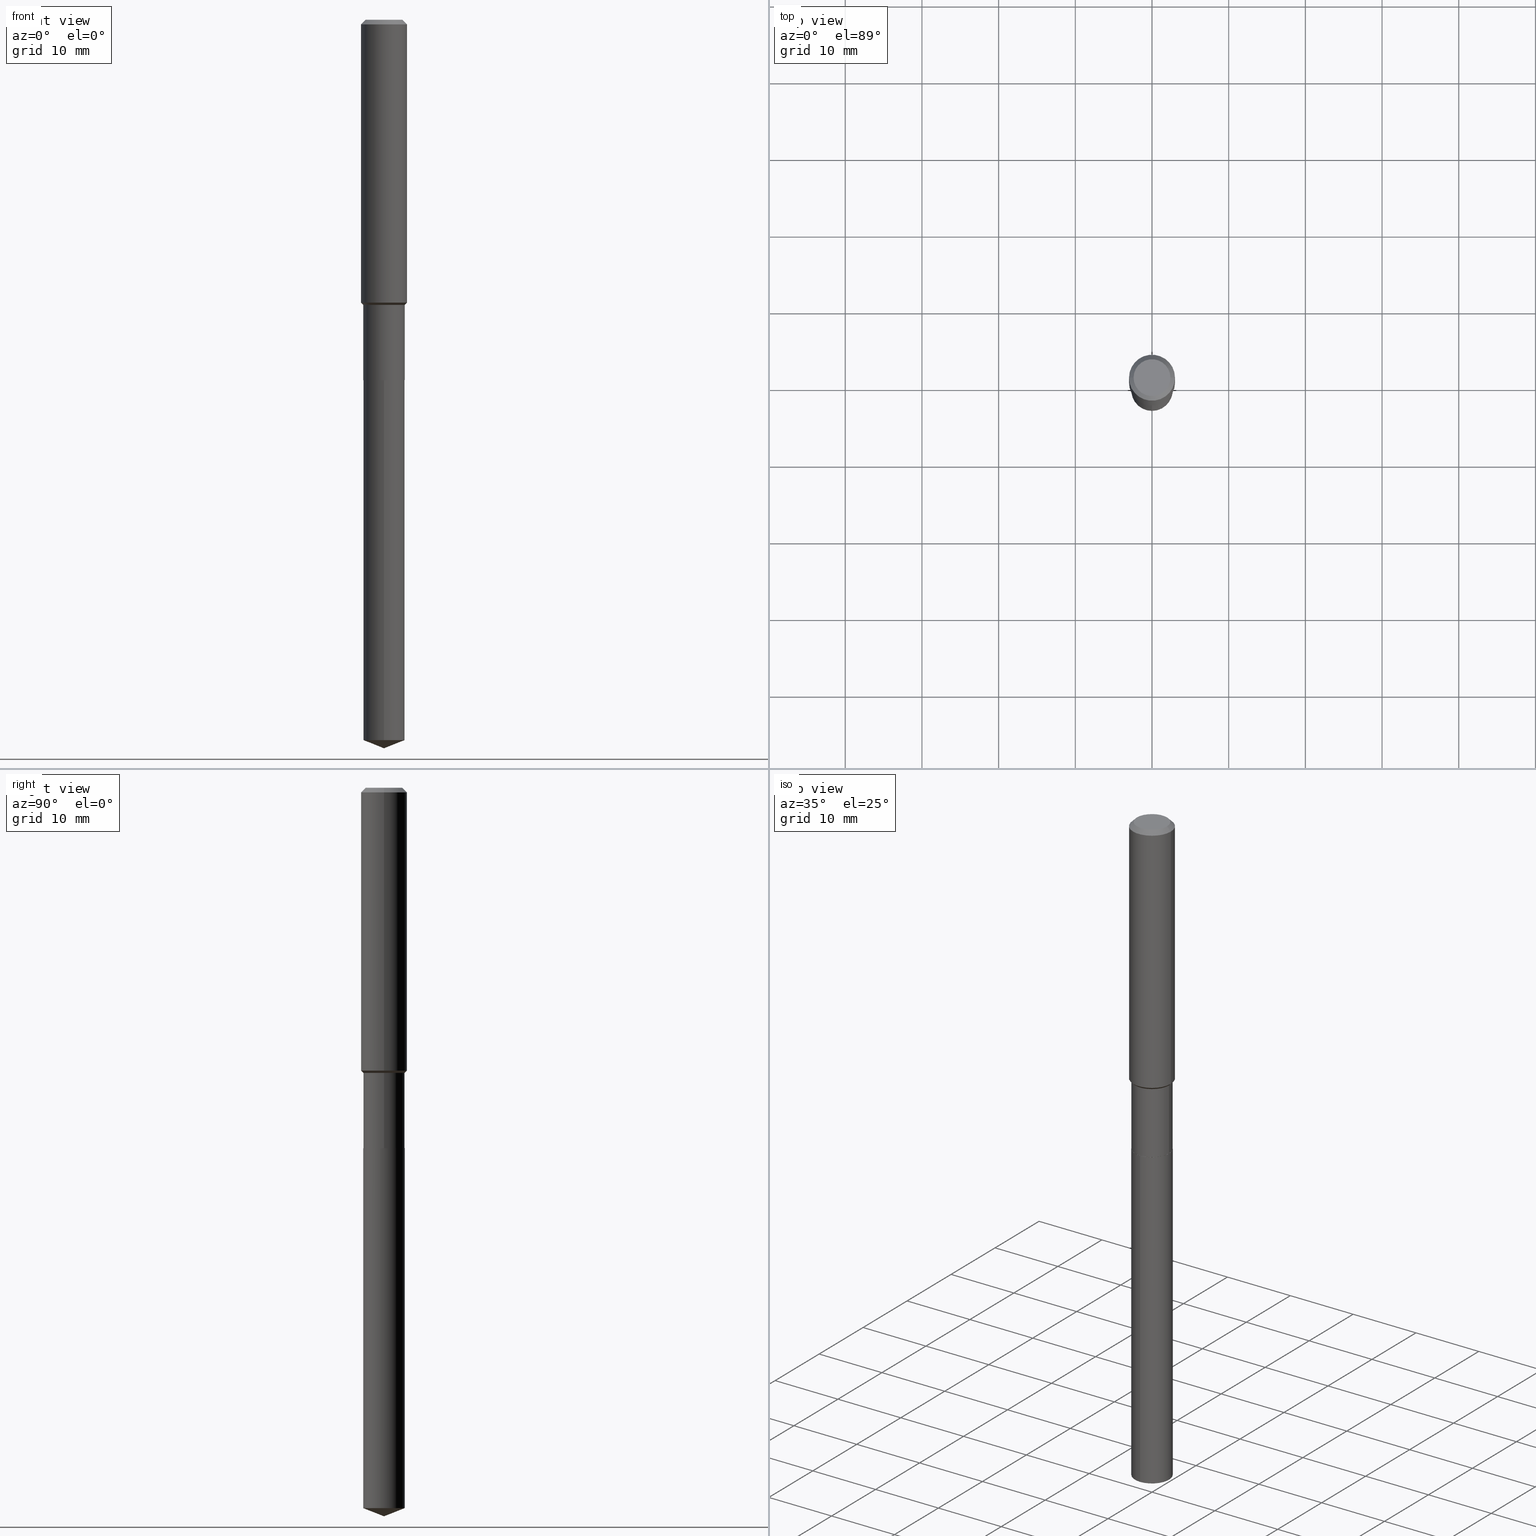
[diagram: canonical four-view strip — front | top / right | iso, engineering-drawing reading convention]
A machine part, canonical four-view strip (front | top / right | iso — engineering-drawing reading convention). The complete STEP part file that produces these views, byte-faithful:
ISO-10303-21;
HEADER;
FILE_DESCRIPTION (( 'STEP AP203' ),
    '1' );
FILE_NAME ('66630.STEP',
    '2024-04-25T02:25:14',
    ( '' ),
    ( '' ),
    'SwSTEP 2.0',
    'SolidWorks 2023',
    '' );
FILE_SCHEMA (( 'CONFIG_CONTROL_DESIGN' ));
ENDSEC;

DATA;
#1 = ORIENTED_EDGE ( 'NONE', *, *, #127, .F. ) ;
#2 = AXIS2_PLACEMENT_3D ( 'NONE', #16, #416, #315 ) ;
#3 = ADVANCED_FACE ( 'NONE', ( #242 ), #245, .T. ) ;
#4 = VERTEX_POINT ( 'NONE', #208 ) ;
#5 = FACE_OUTER_BOUND ( 'NONE', #54, .T. ) ;
#6 = DIRECTION ( 'NONE',  ( -0.7071067811865459074, 2.468850131082240100E-15, -0.7071067811865491270 ) ) ;
#7 = CC_DESIGN_PERSON_AND_ORGANIZATION_ASSIGNMENT ( #294, #108, ( #101 ) ) ;
#8 = DIRECTION ( 'NONE',  ( -6.982962677686265922E-15, -1.000000000000000000, 5.139883337091746339E-15 ) ) ;
#9 = ORIENTED_EDGE ( 'NONE', *, *, #145, .F. ) ;
#10 = VECTOR ( 'NONE', #164, 39.37007874015748143 ) ;
#11 = AXIS2_PLACEMENT_3D ( 'NONE', #358, #402, #297 ) ;
#12 = EDGE_CURVE ( 'NONE', #308, #267, #173, .T. ) ;
#13 = ORIENTED_EDGE ( 'NONE', *, *, #68, .T. ) ;
#14 = FACE_OUTER_BOUND ( 'NONE', #240, .T. ) ;
#15 = VERTEX_POINT ( 'NONE', #51 ) ;
#16 = CARTESIAN_POINT ( 'NONE',  ( 4.525095478964977954E-29, -6.460637069395358365E-15, -1.850400000000000489 ) ) ;
#17 = CARTESIAN_POINT ( 'NONE',  ( 0.1180999999999999966, -9.071566814582237199E-16, -0.02362000000000014088 ) ) ;
#18 = DIRECTION ( 'NONE',  ( -2.445468806185136597E-29, 3.491481338843145583E-15, 1.000000000000000000 ) ) ;
#19 = EDGE_CURVE ( 'NONE', #165, #234, #71, .T. ) ;
#20 = DATE_AND_TIME ( #56, #154 ) ;
#21 = LOCAL_TIME ( 22, 25, 14.00000000000000000, #64 ) ;
#22 = CARTESIAN_POINT ( 'NONE',  ( -0.1058000000000000052, -5.708882854961172332E-15, -1.850400000000000489 ) ) ;
#23 = CARTESIAN_POINT ( 'NONE',  ( 3.580655426016278695E-29, -5.112226976334136155E-15, -1.464200000000000390 ) ) ;
#24 = CALENDAR_DATE ( 2024, 24, 4 ) ;
#25 = DIRECTION ( 'NONE',  ( 1.000000000000000000, -6.982962677686264344E-15, 0.000000000000000000 ) ) ;
#26 = CARTESIAN_POINT ( 'NONE',  ( 5.776197320209327532E-31, -8.246878922347559293E-17, -0.02362000000000014088 ) ) ;
#27 = PERSON_AND_ORGANIZATION_ROLE ( 'creator' ) ;
#28 = DIRECTION ( 'NONE',  ( -6.982962677686266711E-15, -1.000000000000000000, 3.498627837349947424E-15 ) ) ;
#29 = CARTESIAN_POINT ( 'NONE',  ( 0.1180999999999999966, -8.926936027602933910E-16, -0.02362000000000014088 ) ) ;
#30 = CARTESIAN_POINT ( 'NONE',  ( -0.1058000000000000052, -5.706233627787060342E-15, -1.850400000000000489 ) ) ;
#31 = VECTOR ( 'NONE', #412, 39.37007874015748854 ) ;
#32 = CARTESIAN_POINT ( 'NONE',  ( 4.525095478964977394E-29, -6.460637069395357576E-15, -1.850400000000000267 ) ) ;
#33 = DIRECTION ( 'NONE',  ( -2.445480539169629745E-29, 3.491464536541551464E-15, 1.000000000000000000 ) ) ;
#34 = FACE_OUTER_BOUND ( 'NONE', #489, .T. ) ;
#35 = CC_DESIGN_PERSON_AND_ORGANIZATION_ASSIGNMENT ( #254, #438, ( #437 ) ) ;
#36 = ADVANCED_FACE ( 'NONE', ( #326 ), #185, .T. ) ;
#37 = DIRECTION ( 'NONE',  ( -1.000000000000000000, 6.982962677686265922E-15, -4.876176775795935793E-29 ) ) ;
#38 = CONICAL_SURFACE ( 'NONE', #309, 0.1180999999999999966, 0.7853981633974460586 ) ;
#39 = CONICAL_SURFACE ( 'NONE', #134, 0.1058000000000000052, 0.7853981633972775267 ) ;
#40 = VECTOR ( 'NONE', #488, 39.37007874015748143 ) ;
#41 = ORIENTED_EDGE ( 'NONE', *, *, #223, .T. ) ;
#42 = ORIENTED_EDGE ( 'NONE', *, *, #304, .T. ) ;
#43 = EDGE_LOOP ( 'NONE', ( #351, #428 ) ) ;
#44 = ORIENTED_EDGE ( 'NONE', *, *, #197, .T. ) ;
#45 = VECTOR ( 'NONE', #6, 39.37007874015748143 ) ;
#46 = ORIENTED_EDGE ( 'NONE', *, *, #19, .T. ) ;
#47 = DIRECTION ( 'NONE',  ( -6.982962677686265922E-15, -1.000000000000000000, 2.569941668545873170E-15 ) ) ;
#48 = ORIENTED_EDGE ( 'NONE', *, *, #346, .F. ) ;
#49 = EDGE_CURVE ( 'NONE', #301, #170, #280, .T. ) ;
#50 = DIRECTION ( 'NONE',  ( -2.445480539169629745E-29, 3.491464536541551464E-15, 1.000000000000000000 ) ) ;
#51 = CARTESIAN_POINT ( 'NONE',  ( -0.09447999999999998066, 7.009847083995354710E-16, -1.928573779297727792E-17 ) ) ;
#52 = AXIS2_PLACEMENT_3D ( 'NONE', #329, #33, #436 ) ;
#53 = VECTOR ( 'NONE', #179, 39.37007874015748143 ) ;
#54 = EDGE_LOOP ( 'NONE', ( #414, #198, #1 ) ) ;
#55 = EDGE_LOOP ( 'NONE', ( #383, #353 ) ) ;
#56 = CALENDAR_DATE ( 2024, 24, 4 ) ;
#57 = DIRECTION ( 'NONE',  ( -6.982962677686265922E-15, -1.000000000000000000, 5.139883337091746339E-15 ) ) ;
#58 = ORIENTED_EDGE ( 'NONE', *, *, #435, .F. ) ;
#59 = COORDINATED_UNIVERSAL_TIME_OFFSET ( 5, 0, .BEHIND. ) ;
#60 = CONICAL_SURFACE ( 'NONE', #338, 0.1180999999999999966, 0.7853981633974460586 ) ;
#61 = VECTOR ( 'NONE', #109, 39.37007874015748143 ) ;
#62 = CARTESIAN_POINT ( 'NONE',  ( 0.09447999999999998066, -7.704367267948738690E-16, -1.928573779296752193E-17 ) ) ;
#63 = DIRECTION ( 'NONE',  ( 0.7071067811865459074, -7.319954787623249734E-15, -0.7071067811865491270 ) ) ;
#64 = COORDINATED_UNIVERSAL_TIME_OFFSET ( 5, 0, .BEHIND. ) ;
#65 = DIRECTION ( 'NONE',  ( -2.445468806185136597E-29, 3.491481338843145583E-15, 1.000000000000000000 ) ) ;
#66 = PRODUCT ( '66630', '66630', '', ( #150 ) ) ;
#67 = APPROVAL_ROLE ( '' ) ;
#68 = EDGE_CURVE ( 'NONE', #170, #455, #205, .T. ) ;
#69 = CARTESIAN_POINT ( 'NONE',  ( 7.553069281130767633E-16, 0.1062999999999870854, -3.698327316442133306 ) ) ;
#70 = DATE_TIME_ROLE ( 'classification_date' ) ;
#71 = CIRCLE ( 'NONE', #425, 0.1181000000000001632 ) ;
#72 = LINE ( 'NONE', #149, #257 ) ;
#73 = APPROVAL_PERSON_ORGANIZATION ( #333, #75, #327 ) ;
#74 = CARTESIAN_POINT ( 'NONE',  ( -8.713219678274335127E-28, 1.244004269715567405E-13, 35.62987874015747991 ) ) ;
#75 = APPROVAL ( #393, 'UNSPECIFIED' ) ;
#76 = CYLINDRICAL_SURFACE ( 'NONE', #487, 0.1062999999999999640 ) ;
#77 = ORIENTED_EDGE ( 'NONE', *, *, #356, .F. ) ;
#78 = AXIS2_PLACEMENT_3D ( 'NONE', #316, #417, #444 ) ;
#79 = CONICAL_SURFACE ( 'NONE', #126, 99.94676754584159539, 1.195550537616125064 ) ;
#80 = ORIENTED_EDGE ( 'NONE', *, *, #176, .T. ) ;
#81 = ADVANCED_FACE ( 'NONE', ( #293 ), #102, .T. ) ;
#82 = ORIENTED_EDGE ( 'NONE', *, *, #433, .F. ) ;
#83 = EDGE_LOOP ( 'NONE', ( #115, #355, #378, #80 ) ) ;
#84 = LINE ( 'NONE', #465, #279 ) ;
#85 = ORIENTED_EDGE ( 'NONE', *, *, #447, .T. ) ;
#86 = CC_DESIGN_APPROVAL ( #299, ( #406 ) ) ;
#87 = MANIFOLD_SOLID_BREP ( 'Body-Move/Copy2[1]', #226 ) ;
#88 = ORIENTED_EDGE ( 'NONE', *, *, #230, .T. ) ;
#89 = EDGE_CURVE ( 'NONE', #460, #314, #259, .T. ) ;
#90 = CARTESIAN_POINT ( 'NONE',  ( -0.1180999999999999966, -1.737597171946951303E-15, -0.02362000000000014088 ) ) ;
#91 = EDGE_LOOP ( 'NONE', ( #41, #224, #413, #418 ) ) ;
#92 = ADVANCED_BREP_SHAPE_REPRESENTATION ( '66630', ( #87, #252, #281 ), #271 ) ;
#93 = CARTESIAN_POINT ( 'NONE',  ( 3.580655426016278695E-29, -5.112226976334136155E-15, -1.464200000000000390 ) ) ;
#94 = CIRCLE ( 'NONE', #262, 0.1058000000000000052 ) ;
#95 = DIRECTION ( 'NONE',  ( -6.982962677686266711E-15, -1.000000000000000000, 3.498627837349947424E-15 ) ) ;
#96 = EDGE_LOOP ( 'NONE', ( #77, #395, #166, #58 ) ) ;
#97 = ADVANCED_FACE ( 'NONE', ( #286 ), #39, .T. ) ;
#98 = EDGE_LOOP ( 'NONE', ( #46, #283, #274, #206 ) ) ;
#99 = DIRECTION ( 'NONE',  ( 1.000000000000000000, 0.000000000000000000, 0.000000000000000000 ) ) ;
#100 = DIRECTION ( 'NONE',  ( -2.445468806185136597E-29, 3.491481338843145583E-15, 1.000000000000000000 ) ) ;
#101 = PRODUCT_DEFINITION ( 'UNKNOWN', '', #406, #434 ) ;
#102 = CYLINDRICAL_SURFACE ( 'NONE', #125, 0.1063000000000000056 ) ;
#103 = AXIS2_PLACEMENT_3D ( 'NONE', #23, #466, #133 ) ;
#104 = PERSON_AND_ORGANIZATION_ROLE ( 'design_owner' ) ;
#105 = AXIS2_PLACEMENT_3D ( 'NONE', #405, #372, #190 ) ;
#106 = AXIS2_PLACEMENT_3D ( 'NONE', #163, #461, #47 ) ;
#107 = CARTESIAN_POINT ( 'NONE',  ( 7.553069281130771577E-16, 0.1062999999999935524, -1.850400000000000489 ) ) ;
#108 = PERSON_AND_ORGANIZATION_ROLE ( 'creator' ) ;
#109 = DIRECTION ( 'NONE',  ( -2.445480539169630025E-29, 3.491464536541551464E-15, 1.000000000000000000 ) ) ;
#110 = DATE_AND_TIME ( #473, #298 ) ;
#111 = DIRECTION ( 'NONE',  ( -2.445468806185136597E-29, 3.491481338843145583E-15, 1.000000000000000000 ) ) ;
#112 = CC_DESIGN_PERSON_AND_ORGANIZATION_ASSIGNMENT ( #291, #143, ( #406 ) ) ;
#113 = EDGE_CURVE ( 'NONE', #165, #170, #84, .T. ) ;
#114 = AXIS2_PLACEMENT_3D ( 'NONE', #117, #119, #337 ) ;
#115 = ORIENTED_EDGE ( 'NONE', *, *, #49, .F. ) ;
#116 = LINE ( 'NONE', #263, #31 ) ;
#117 = CARTESIAN_POINT ( 'NONE',  ( 0.000000000000000000, 0.000000000000000000, 0.000000000000000000 ) ) ;
#118 = ORIENTED_EDGE ( 'NONE', *, *, #12, .F. ) ;
#119 = DIRECTION ( 'NONE',  ( -2.445468806185136597E-29, 3.491481338843145583E-15, 1.000000000000000000 ) ) ;
#120 = ORIENTED_EDGE ( 'NONE', *, *, #225, .T. ) ;
#121 = ADVANCED_FACE ( 'NONE', ( #347 ), #273, .F. ) ;
#122 = CARTESIAN_POINT ( 'NONE',  ( 4.523872744561885153E-29, -6.458891328725936072E-15, -1.849900000000000322 ) ) ;
#123 = CARTESIAN_POINT ( 'NONE',  ( 0.1062999999999999640, -7.422889326380500401E-16, 5.183375912671078649E-30 ) ) ;
#124 = EDGE_CURVE ( 'NONE', #301, #15, #486, .T. ) ;
#125 = AXIS2_PLACEMENT_3D ( 'NONE', #32, #335, #146 ) ;
#126 = AXIS2_PLACEMENT_3D ( 'NONE', #171, #50, #95 ) ;
#127 = EDGE_CURVE ( 'NONE', #308, #314, #192, .T. ) ;
#128 = ORIENTED_EDGE ( 'NONE', *, *, #199, .F. ) ;
#129 = DIRECTION ( 'NONE',  ( -2.445468806185136597E-29, 3.491481338843145583E-15, 1.000000000000000000 ) ) ;
#130 = DIRECTION ( 'NONE',  ( 2.445468806185136597E-29, -3.491481338843145583E-15, -1.000000000000000000 ) ) ;
#131 = ORIENTED_EDGE ( 'NONE', *, *, #124, .F. ) ;
#132 = CARTESIAN_POINT ( 'NONE',  ( 4.525095478964977394E-29, -6.460637069395357576E-15, -1.850400000000000267 ) ) ;
#133 = DIRECTION ( 'NONE',  ( 1.000000000000000000, -6.982962677686264344E-15, 0.000000000000000000 ) ) ;
#134 = AXIS2_PLACEMENT_3D ( 'NONE', #403, #296, #289 ) ;
#135 = CC_DESIGN_APPROVAL ( #75, ( #101 ) ) ;
#136 = EDGE_CURVE ( 'NONE', #15, #455, #313, .T. ) ;
#137 = ORIENTED_EDGE ( 'NONE', *, *, #225, .F. ) ;
#138 = PERSON ( 'UNSPECIFIED', 'UNSPECIFIED', 'UNSPECIFIED', ('UNSPECIFIED'), ('UNSPECIFIED'), ('UNSPECIFIED') ) ;
#139 = APPLICATION_PROTOCOL_DEFINITION ( 'international standard', 'config_control_design', 1994, #336 ) ;
#140 = CC_DESIGN_DATE_AND_TIME_ASSIGNMENT ( #483, #287, ( #101 ) ) ;
#141 = LINE ( 'NONE', #22, #53 ) ;
#142 = VERTEX_POINT ( 'NONE', #354 ) ;
#143 = PERSON_AND_ORGANIZATION_ROLE ( 'design_supplier' ) ;
#144 = CARTESIAN_POINT ( 'NONE',  ( 1.188710145161459842E-29, -1.123853076266223268E-14, -1.850400000000000489 ) ) ;
#145 = EDGE_CURVE ( 'NONE', #142, #312, #384, .T. ) ;
#146 = DIRECTION ( 'NONE',  ( -6.982962677686265922E-15, -1.000000000000000000, 2.569941668545873170E-15 ) ) ;
#147 = VECTOR ( 'NONE', #212, 39.37007874015748143 ) ;
#148 = APPROVAL_PERSON_ORGANIZATION ( #250, #155, #67 ) ;
#149 = CARTESIAN_POINT ( 'NONE',  ( -0.1062999999999999501, -4.356920048221149223E-15, -1.464200000000000390 ) ) ;
#150 = MECHANICAL_CONTEXT ( 'NONE', #419, 'mechanical' ) ;
#151 = CARTESIAN_POINT ( 'NONE',  ( 0.000000000000000000, 0.000000000000000000, 0.000000000000000000 ) ) ;
#152 = LENGTH_MEASURE_WITH_UNIT ( LENGTH_MEASURE( 0.02539999999999999897 ), #238 );
#153 = DIRECTION ( 'NONE',  ( 1.000000000000000000, -6.982962677686265922E-15, 4.876176775795935793E-29 ) ) ;
#154 = LOCAL_TIME ( 22, 25, 14.00000000000000000, #59 ) ;
#155 = APPROVAL ( #178, 'UNSPECIFIED' ) ;
#156 = EDGE_LOOP ( 'NONE', ( #203, #200, #209, #377 ) ) ;
#157 = LINE ( 'NONE', #449, #40 ) ;
#158 = EDGE_CURVE ( 'NONE', #234, #455, #168, .T. ) ;
#159 = AXIS2_PLACEMENT_3D ( 'NONE', #236, #270, #388 ) ;
#160 = VECTOR ( 'NONE', #255, 39.37007874015748143 ) ;
#161 = EDGE_LOOP ( 'NONE', ( #137, #42, #194, #48 ) ) ;
#162 = ORIENTED_EDGE ( 'NONE', *, *, #19, .F. ) ;
#163 = CARTESIAN_POINT ( 'NONE',  ( 4.525095478964977394E-29, -6.460637069395357576E-15, -1.850400000000000267 ) ) ;
#164 = DIRECTION ( 'NONE',  ( -2.445468806185136877E-29, 3.491481338843145188E-15, 1.000000000000000000 ) ) ;
#165 = VERTEX_POINT ( 'NONE', #427 ) ;
#166 = ORIENTED_EDGE ( 'NONE', *, *, #404, .T. ) ;
#167 = AXIS2_PLACEMENT_3D ( 'NONE', #266, #409, #37 ) ;
#168 = LINE ( 'NONE', #276, #10 ) ;
#169 = ADVANCED_FACE ( 'NONE', ( #174 ), #60, .T. ) ;
#170 = VERTEX_POINT ( 'NONE', #17 ) ;
#171 = CARTESIAN_POINT ( 'NONE',  ( -8.713219678274335127E-28, 1.244004269715567405E-13, 35.62987874015747991 ) ) ;
#172 = CYLINDRICAL_SURFACE ( 'NONE', #78, 0.1063000000000000056 ) ;
#173 = LINE ( 'NONE', #385, #147 ) ;
#174 = FACE_OUTER_BOUND ( 'NONE', #463, .T. ) ;
#175 = VERTEX_POINT ( 'NONE', #319 ) ;
#176 = EDGE_CURVE ( 'NONE', #455, #170, #302, .T. ) ;
#177 = CIRCLE ( 'NONE', #323, 0.1058000000000000052 ) ;
#178 = APPROVAL_STATUS ( 'not_yet_approved' ) ;
#179 = DIRECTION ( 'NONE',  ( -0.7071067811864267805, 7.493145998869918709E-15, 0.7071067811866682540 ) ) ;
#180 = ORIENTED_EDGE ( 'NONE', *, *, #361, .T. ) ;
#181 = EDGE_CURVE ( 'NONE', #15, #301, #310, .T. ) ;
#182 = ADVANCED_FACE ( 'NONE', ( #456 ), #38, .T. ) ;
#183 = CARTESIAN_POINT ( 'NONE',  ( 9.146586693356927948E-29, -1.305877565957271148E-14, -3.740200000000000191 ) ) ;
#184 = CARTESIAN_POINT ( 'NONE',  ( 4.525095478964977954E-29, -6.460637069395358365E-15, -1.850400000000000489 ) ) ;
#185 = CONICAL_SURFACE ( 'NONE', #103, 0.1062999999999999501, 0.7853981633974519427 ) ;
#186 =( CONVERSION_BASED_UNIT ( 'INCH', #152 ) LENGTH_UNIT ( ) NAMED_UNIT ( #232 ) );
#187 = CIRCLE ( 'NONE', #106, 0.1063000000000000056 ) ;
#188 = CARTESIAN_POINT ( 'NONE',  ( 0.000000000000000000, 0.000000000000000000, 0.000000000000000000 ) ) ;
#189 = PERSON_AND_ORGANIZATION ( #138, #339 ) ;
#190 = DIRECTION ( 'NONE',  ( 1.000000000000000000, -6.982962677686270655E-15, 0.000000000000000000 ) ) ;
#191 = DIRECTION ( 'NONE',  ( 1.000000000000000000, -6.982962677686268288E-15, 4.876176775795936353E-29 ) ) ;
#192 = CIRCLE ( 'NONE', #374, 0.1063000000000000056 ) ;
#193 = CC_DESIGN_SECURITY_CLASSIFICATION ( #437, ( #406 ) ) ;
#194 = ORIENTED_EDGE ( 'NONE', *, *, #407, .T. ) ;
#195 = ADVANCED_FACE ( 'NONE', ( #14 ), #172, .T. ) ;
#196 = APPROVAL_PERSON_ORGANIZATION ( #210, #299, #216 ) ;
#197 = EDGE_CURVE ( 'NONE', #306, #4, #408, .T. ) ;
#198 = ORIENTED_EDGE ( 'NONE', *, *, #89, .T. ) ;
#199 = EDGE_CURVE ( 'NONE', #267, #457, #410, .T. ) ;
#200 = ORIENTED_EDGE ( 'NONE', *, *, #435, .T. ) ;
#201 = DIRECTION ( 'NONE',  ( -2.445480539169629745E-29, 3.491464536541551464E-15, 1.000000000000000000 ) ) ;
#202 = DIRECTION ( 'NONE',  ( 1.000000000000000000, -6.982962677686267499E-15, 4.875432709231658792E-29 ) ) ;
#203 = ORIENTED_EDGE ( 'NONE', *, *, #197, .F. ) ;
#204 = DIRECTION ( 'NONE',  ( -2.445468806185136877E-29, 3.491481338843145188E-15, 1.000000000000000000 ) ) ;
#205 = CIRCLE ( 'NONE', #220, 0.1180999999999999966 ) ;
#206 = ORIENTED_EDGE ( 'NONE', *, *, #113, .F. ) ;
#207 = DIRECTION ( 'NONE',  ( 2.445468806185136597E-29, -3.491481338843145583E-15, -1.000000000000000000 ) ) ;
#208 = CARTESIAN_POINT ( 'NONE',  ( -0.1062999999999999501, -5.030252224417050365E-15, -1.464200000000000390 ) ) ;
#209 = ORIENTED_EDGE ( 'NONE', *, *, #145, .T. ) ;
#210 = PERSON_AND_ORGANIZATION ( #138, #339 ) ;
#211 = DIRECTION ( 'NONE',  ( 6.982962677686265922E-15, 1.000000000000000000, -3.491464536541551464E-15 ) ) ;
#212 = DIRECTION ( 'NONE',  ( -2.445480539169630025E-29, 3.491464536541551464E-15, 1.000000000000000000 ) ) ;
#213 = CC_DESIGN_APPROVAL ( #155, ( #437 ) ) ;
#214 = CALENDAR_DATE ( 2024, 24, 4 ) ;
#215 = LINE ( 'NONE', #244, #61 ) ;
#216 = APPROVAL_ROLE ( '' ) ;
#217 = CARTESIAN_POINT ( 'NONE',  ( -0.1062999999999999640, 7.553069281129862415E-16, -5.228828000940962955E-30 ) ) ;
#218 = ADVANCED_FACE ( 'NONE', ( #258 ), #369, .T. ) ;
#219 = CARTESIAN_POINT ( 'NONE',  ( 0.1062999999999999501, -5.854515908972185504E-15, -1.464200000000000390 ) ) ;
#220 = AXIS2_PLACEMENT_3D ( 'NONE', #26, #253, #475 ) ;
#221 = CONICAL_SURFACE ( 'NONE', #2, 0.1058000000000000052, 0.7853981633972775267 ) ;
#222 = CYLINDRICAL_SURFACE ( 'NONE', #344, 0.1181000000000000799 ) ;
#223 = EDGE_CURVE ( 'NONE', #175, #342, #94, .T. ) ;
#224 = ORIENTED_EDGE ( 'NONE', *, *, #356, .T. ) ;
#225 = EDGE_CURVE ( 'NONE', #4, #234, #72, .T. ) ;
#226 = CLOSED_SHELL ( 'NONE', ( #195, #218, #411, #81, #121 ) ) ;
#227 = AXIS2_PLACEMENT_3D ( 'NONE', #144, #484, #153 ) ;
#228 = EDGE_LOOP ( 'NONE', ( #118, #229, #472, #128 ) ) ;
#229 = ORIENTED_EDGE ( 'NONE', *, *, #127, .T. ) ;
#230 = EDGE_CURVE ( 'NONE', #460, #308, #401, .T. ) ;
#231 = EDGE_LOOP ( 'NONE', ( #237, #120, #162, #340 ) ) ;
#232 = DIMENSIONAL_EXPONENTS ( 1.000000000000000000, 0.000000000000000000, 0.000000000000000000, 0.000000000000000000, 0.000000000000000000, 0.000000000000000000, 0.000000000000000000 ) ;
#233 = CARTESIAN_POINT ( 'NONE',  ( 5.776197320209327532E-31, -8.246878922347559293E-17, -0.02362000000000014088 ) ) ;
#234 = VERTEX_POINT ( 'NONE', #478 ) ;
#235 = ORIENTED_EDGE ( 'NONE', *, *, #113, .T. ) ;
#236 = CARTESIAN_POINT ( 'NONE',  ( 4.716267017698007905E-46, -6.733579360998555036E-32, -1.928573779297252010E-17 ) ) ;
#237 = ORIENTED_EDGE ( 'NONE', *, *, #300, .T. ) ;
#238 =( LENGTH_UNIT ( ) NAMED_UNIT ( * ) SI_UNIT ( $, .METRE. ) );
#239 = DIRECTION ( 'NONE',  ( -1.000000000000000000, 6.982962677686266711E-15, 0.000000000000000000 ) ) ;
#240 = EDGE_LOOP ( 'NONE', ( #85, #450, #82, #379 ) ) ;
#241 = SECURITY_CLASSIFICATION_LEVEL ( 'unclassified' ) ;
#242 = FACE_OUTER_BOUND ( 'NONE', #161, .T. ) ;
#243 = PERSON_AND_ORGANIZATION ( #138, #339 ) ;
#244 = CARTESIAN_POINT ( 'NONE',  ( -7.422889326380048778E-16, -0.1063000000000064588, -1.850400000000000045 ) ) ;
#245 = CONICAL_SURFACE ( 'NONE', #269, 0.1062999999999999501, 0.7853981633974519427 ) ;
#246 = AXIS2_PLACEMENT_3D ( 'NONE', #74, #366, #28 ) ;
#247 = CARTESIAN_POINT ( 'NONE',  ( 0.000000000000000000, 0.000000000000000000, 0.000000000000000000 ) ) ;
#248 = DIRECTION ( 'NONE',  ( 1.000000000000000000, -6.982962677686266711E-15, 4.876176775795936353E-29 ) ) ;
#249 = ADVANCED_FACE ( 'NONE', ( #328 ), #439, .T. ) ;
#250 = PERSON_AND_ORGANIZATION ( #138, #339 ) ;
#251 = DIRECTION ( 'NONE',  ( -2.445468806185136597E-29, 3.491481338843145583E-15, 1.000000000000000000 ) ) ;
#252 = MANIFOLD_SOLID_BREP ( 'Body-Move/Copy2[2]', #467 ) ;
#253 = DIRECTION ( 'NONE',  ( -2.445468806185136597E-29, 3.491481338843145583E-15, 1.000000000000000000 ) ) ;
#254 = PERSON_AND_ORGANIZATION ( #138, #339 ) ;
#255 = DIRECTION ( 'NONE',  ( 6.611014441532080788E-15, 0.9304175679820292366, 0.3665012267242853672 ) ) ;
#256 = AXIS2_PLACEMENT_3D ( 'NONE', #132, #282, #211 ) ;
#257 = VECTOR ( 'NONE', #442, 39.37007874015748854 ) ;
#258 = FACE_OUTER_BOUND ( 'NONE', #392, .T. ) ;
#259 = LINE ( 'NONE', #440, #445 ) ;
#260 = UNCERTAINTY_MEASURE_WITH_UNIT (LENGTH_MEASURE( 1.000000000000000082E-05 ), #186, 'distance_accuracy_value', 'NONE');
#261 = FACE_OUTER_BOUND ( 'NONE', #55, .T. ) ;
#262 = AXIS2_PLACEMENT_3D ( 'NONE', #184, #292, #25 ) ;
#263 = CARTESIAN_POINT ( 'NONE',  ( 0.1062999999999999501, -5.854515908972185504E-15, -1.464200000000000390 ) ) ;
#264 = ORIENTED_EDGE ( 'NONE', *, *, #346, .T. ) ;
#265 = CYLINDRICAL_SURFACE ( 'NONE', #114, 0.1062999999999999640 ) ;
#266 = CARTESIAN_POINT ( 'NONE',  ( 2.358133508849003952E-46, -3.366789680499277518E-32, -9.642868896486260050E-18 ) ) ;
#267 = VERTEX_POINT ( 'NONE', #107 ) ;
#268 = FACE_OUTER_BOUND ( 'NONE', #96, .T. ) ;
#269 = AXIS2_PLACEMENT_3D ( 'NONE', #93, #18, #348 ) ;
#270 = DIRECTION ( 'NONE',  ( -2.445468806185136597E-29, 3.491481338843145583E-15, 1.000000000000000000 ) ) ;
#271 =( GEOMETRIC_REPRESENTATION_CONTEXT ( 3 ) GLOBAL_UNCERTAINTY_ASSIGNED_CONTEXT ( ( #260 ) ) GLOBAL_UNIT_ASSIGNED_CONTEXT ( ( #186, #476, #362 ) ) REPRESENTATION_CONTEXT ( 'NONE', 'WORKASPACE' ) );
#272 = ORIENTED_EDGE ( 'NONE', *, *, #176, .F. ) ;
#273 = PLANE ( 'NONE',  #256 ) ;
#274 = ORIENTED_EDGE ( 'NONE', *, *, #68, .F. ) ;
#275 = DIRECTION ( 'NONE',  ( 1.000000000000000000, -6.982962677686269077E-15, 0.000000000000000000 ) ) ;
#276 = CARTESIAN_POINT ( 'NONE',  ( -0.1181000000000000799, 8.391509709326788873E-16, -5.809262341591047988E-30 ) ) ;
#277 = CARTESIAN_POINT ( 'NONE',  ( 3.551798894103292952E-29, -5.071027496535786304E-15, -1.452400000000000357 ) ) ;
#278 = DIRECTION ( 'NONE',  ( -2.445480539169629745E-29, 3.491464536541551464E-15, 1.000000000000000000 ) ) ;
#279 = VECTOR ( 'NONE', #381, 39.37007874015748143 ) ;
#280 = LINE ( 'NONE', #29, #477 ) ;
#281 = AXIS2_PLACEMENT_3D ( 'NONE', #247, #364, #99 ) ;
#282 = DIRECTION ( 'NONE',  ( 2.445480539169629464E-29, -3.491464536541551464E-15, -1.000000000000000000 ) ) ;
#283 = ORIENTED_EDGE ( 'NONE', *, *, #158, .T. ) ;
#284 = EDGE_CURVE ( 'NONE', #314, #457, #215, .T. ) ;
#285 = DIRECTION ( 'NONE',  ( 1.000000000000000000, -6.982962677686269077E-15, 0.000000000000000000 ) ) ;
#286 = FACE_OUTER_BOUND ( 'NONE', #91, .T. ) ;
#287 = DATE_TIME_ROLE ( 'creation_date' ) ;
#288 = CARTESIAN_POINT ( 'NONE',  ( 3.580655426016278695E-29, -5.112226976334136155E-15, -1.464200000000000390 ) ) ;
#289 = DIRECTION ( 'NONE',  ( 1.000000000000000000, -6.982962677686264344E-15, 0.000000000000000000 ) ) ;
#290 = AXIS2_PLACEMENT_3D ( 'NONE', #325, #471, #285 ) ;
#291 = PERSON_AND_ORGANIZATION ( #138, #339 ) ;
#292 = DIRECTION ( 'NONE',  ( -2.445468806185136597E-29, 3.491481338843145583E-15, 1.000000000000000000 ) ) ;
#293 = FACE_OUTER_BOUND ( 'NONE', #228, .T. ) ;
#294 = PERSON_AND_ORGANIZATION ( #138, #339 ) ;
#295 = DIRECTION ( 'NONE',  ( 1.000000000000000000, -6.982962677686266711E-15, 4.876176775795936353E-29 ) ) ;
#296 = DIRECTION ( 'NONE',  ( -2.445468806185136597E-29, 3.491481338843145583E-15, 1.000000000000000000 ) ) ;
#297 = DIRECTION ( 'NONE',  ( 1.000000000000000000, -6.982962677686264344E-15, 0.000000000000000000 ) ) ;
#298 = LOCAL_TIME ( 22, 25, 14.00000000000000000, #371 ) ;
#299 = APPROVAL ( #429, 'UNSPECIFIED' ) ;
#300 = EDGE_CURVE ( 'NONE', #312, #4, #303, .T. ) ;
#301 = VERTEX_POINT ( 'NONE', #62 ) ;
#302 = CIRCLE ( 'NONE', #398, 0.1180999999999999966 ) ;
#303 = CIRCLE ( 'NONE', #458, 0.1062999999999999501 ) ;
#304 = EDGE_CURVE ( 'NONE', #4, #312, #387, .T. ) ;
#305 = DIRECTION ( 'NONE',  ( 1.000000000000000000, -6.982962677686264344E-15, 0.000000000000000000 ) ) ;
#306 = VERTEX_POINT ( 'NONE', #332 ) ;
#307 = DIRECTION ( 'NONE',  ( -2.445468806185136597E-29, 3.491481338843145583E-15, 1.000000000000000000 ) ) ;
#308 = VERTEX_POINT ( 'NONE', #69 ) ;
#309 = AXIS2_PLACEMENT_3D ( 'NONE', #233, #207, #352 ) ;
#310 = CIRCLE ( 'NONE', #159, 0.09447999999999998066 ) ;
#311 = CIRCLE ( 'NONE', #105, 0.1181000000000001632 ) ;
#312 = VERTEX_POINT ( 'NONE', #219 ) ;
#313 = LINE ( 'NONE', #394, #45 ) ;
#314 = VERTEX_POINT ( 'NONE', #482 ) ;
#315 = DIRECTION ( 'NONE',  ( 1.000000000000000000, -6.982962677686264344E-15, 0.000000000000000000 ) ) ;
#316 = CARTESIAN_POINT ( 'NONE',  ( 4.525095478964977394E-29, -6.460637069395357576E-15, -1.850400000000000267 ) ) ;
#317 = DIRECTION ( 'NONE',  ( 1.000000000000000000, -6.982962677686270655E-15, 0.000000000000000000 ) ) ;
#318 = CC_DESIGN_DATE_AND_TIME_ASSIGNMENT ( #20, #70, ( #437 ) ) ;
#319 = CARTESIAN_POINT ( 'NONE',  ( 0.1058000000000000052, -7.199434520694564708E-15, -1.850400000000000489 ) ) ;
#320 = VECTOR ( 'NONE', #204, 39.37007874015748143 ) ;
#321 = ADVANCED_FACE ( 'NONE', ( #368 ), #222, .T. ) ;
#322 = ORIENTED_EDGE ( 'NONE', *, *, #89, .F. ) ;
#323 = AXIS2_PLACEMENT_3D ( 'NONE', #432, #100, #305 ) ;
#324 = APPROVAL_DATE_TIME ( #481, #155 ) ;
#325 = CARTESIAN_POINT ( 'NONE',  ( 4.523872744561885153E-29, -6.458891328725936072E-15, -1.849900000000000322 ) ) ;
#326 = FACE_OUTER_BOUND ( 'NONE', #231, .T. ) ;
#327 = APPROVAL_ROLE ( '' ) ;
#328 = FACE_OUTER_BOUND ( 'NONE', #98, .T. ) ;
#329 = CARTESIAN_POINT ( 'NONE',  ( 4.525095478964977394E-29, -6.460637069395357576E-15, -1.850400000000000267 ) ) ;
#330 = CIRCLE ( 'NONE', #290, 0.1063000000000000056 ) ;
#331 = APPROVAL_DATE_TIME ( #431, #75 ) ;
#332 = CARTESIAN_POINT ( 'NONE',  ( -0.1062999999999999917, -5.030252224417050365E-15, -1.849900000000000322 ) ) ;
#333 = PERSON_AND_ORGANIZATION ( #138, #339 ) ;
#334 = PLANE ( 'NONE',  #227 ) ;
#335 = DIRECTION ( 'NONE',  ( -2.445480539169629745E-29, 3.491464536541551464E-15, 1.000000000000000000 ) ) ;
#336 = APPLICATION_CONTEXT ( 'configuration controlled 3d designs of mechanical parts and assemblies' ) ;
#337 = DIRECTION ( 'NONE',  ( 1.000000000000000000, -6.982962677686268288E-15, 4.876176775795936353E-29 ) ) ;
#338 = AXIS2_PLACEMENT_3D ( 'NONE', #462, #130, #239 ) ;
#339 = ORGANIZATION ( 'UNSPECIFIED', 'UNSPECIFIED', '' ) ;
#340 = ORIENTED_EDGE ( 'NONE', *, *, #407, .F. ) ;
#341 = CARTESIAN_POINT ( 'NONE',  ( 0.000000000000000000, 0.000000000000000000, 0.000000000000000000 ) ) ;
#342 = VERTEX_POINT ( 'NONE', #30 ) ;
#343 = EDGE_LOOP ( 'NONE', ( #430, #469 ) ) ;
#344 = AXIS2_PLACEMENT_3D ( 'NONE', #151, #111, #248 ) ;
#345 = ORIENTED_EDGE ( 'NONE', *, *, #49, .T. ) ;
#346 = EDGE_CURVE ( 'NONE', #234, #165, #311, .T. ) ;
#347 = FACE_OUTER_BOUND ( 'NONE', #343, .T. ) ;
#348 = DIRECTION ( 'NONE',  ( 1.000000000000000000, -6.982962677686264344E-15, 0.000000000000000000 ) ) ;
#349 = ADVANCED_FACE ( 'NONE', ( #474 ), #334, .F. ) ;
#350 = VECTOR ( 'NONE', #363, 39.37007874015748143 ) ;
#351 = ORIENTED_EDGE ( 'NONE', *, *, #223, .F. ) ;
#352 = DIRECTION ( 'NONE',  ( -1.000000000000000000, 6.982962677686266711E-15, 0.000000000000000000 ) ) ;
#353 = ORIENTED_EDGE ( 'NONE', *, *, #124, .T. ) ;
#354 = CARTESIAN_POINT ( 'NONE',  ( 0.1063000000000000056, -7.201180261363987000E-15, -1.849900000000000322 ) ) ;
#355 = ORIENTED_EDGE ( 'NONE', *, *, #181, .F. ) ;
#356 = EDGE_CURVE ( 'NONE', #342, #306, #141, .T. ) ;
#357 = APPROVAL_DATE_TIME ( #110, #299 ) ;
#358 = CARTESIAN_POINT ( 'NONE',  ( 3.580655426016278695E-29, -5.112226976334136155E-15, -1.464200000000000390 ) ) ;
#359 = AXIS2_PLACEMENT_3D ( 'NONE', #459, #420, #202 ) ;
#360 = DIRECTION ( 'NONE',  ( -2.445468806185136597E-29, 3.491481338843145583E-15, 1.000000000000000000 ) ) ;
#361 = EDGE_CURVE ( 'NONE', #142, #306, #330, .T. ) ;
#362 =( NAMED_UNIT ( * ) SI_UNIT ( $, .STERADIAN. ) SOLID_ANGLE_UNIT ( ) );
#363 = DIRECTION ( 'NONE',  ( -2.445468806185136877E-29, 3.491481338843145188E-15, 1.000000000000000000 ) ) ;
#364 = DIRECTION ( 'NONE',  ( 0.000000000000000000, 0.000000000000000000, 1.000000000000000000 ) ) ;
#365 = EDGE_CURVE ( 'NONE', #342, #175, #177, .T. ) ;
#366 = DIRECTION ( 'NONE',  ( -2.445480539169629745E-29, 3.491464536541551464E-15, 1.000000000000000000 ) ) ;
#367 = COORDINATED_UNIVERSAL_TIME_OFFSET ( 5, 0, .BEHIND. ) ;
#368 = FACE_OUTER_BOUND ( 'NONE', #421, .T. ) ;
#369 = CONICAL_SURFACE ( 'NONE', #246, 99.94676754584159539, 1.195550537616125064 ) ;
#370 = AXIS2_PLACEMENT_3D ( 'NONE', #380, #201, #8 ) ;
#371 = COORDINATED_UNIVERSAL_TIME_OFFSET ( 5, 0, .BEHIND. ) ;
#372 = DIRECTION ( 'NONE',  ( -2.445468806185136597E-29, 3.491481338843145583E-15, 1.000000000000000000 ) ) ;
#373 = ORIENTED_EDGE ( 'NONE', *, *, #158, .F. ) ;
#374 = AXIS2_PLACEMENT_3D ( 'NONE', #390, #278, #57 ) ;
#375 = LOCAL_TIME ( 22, 25, 14.00000000000000000, #400 ) ;
#376 = CIRCLE ( 'NONE', #370, 0.1063000000000000056 ) ;
#377 = ORIENTED_EDGE ( 'NONE', *, *, #304, .F. ) ;
#378 = ORIENTED_EDGE ( 'NONE', *, *, #136, .T. ) ;
#379 = ORIENTED_EDGE ( 'NONE', *, *, #284, .F. ) ;
#380 = CARTESIAN_POINT ( 'NONE',  ( 9.044165769124170922E-29, -1.291260976085945986E-14, -3.698327316442132862 ) ) ;
#381 = DIRECTION ( 'NONE',  ( -2.445468806185136877E-29, 3.491481338843145188E-15, 1.000000000000000000 ) ) ;
#382 = ADVANCED_FACE ( 'NONE', ( #34 ), #76, .T. ) ;
#383 = ORIENTED_EDGE ( 'NONE', *, *, #181, .T. ) ;
#384 = LINE ( 'NONE', #123, #320 ) ;
#385 = CARTESIAN_POINT ( 'NONE',  ( 7.553069281130316996E-16, 0.1062999999999935524, -1.850400000000000489 ) ) ;
#386 = PRODUCT_RELATED_PRODUCT_CATEGORY ( 'detail', '', ( #66 ) ) ;
#387 = CIRCLE ( 'NONE', #11, 0.1062999999999999501 ) ;
#388 = DIRECTION ( 'NONE',  ( 1.000000000000000000, -6.982962677686267499E-15, 4.875432709231658792E-29 ) ) ;
#389 = ORIENTED_EDGE ( 'NONE', *, *, #136, .F. ) ;
#390 = CARTESIAN_POINT ( 'NONE',  ( 9.044165769124170922E-29, -1.291260976085945986E-14, -3.698327316442132862 ) ) ;
#391 = ADVANCED_FACE ( 'NONE', ( #453 ), #265, .T. ) ;
#392 = EDGE_LOOP ( 'NONE', ( #322, #88, #448 ) ) ;
#393 = APPROVAL_STATUS ( 'not_yet_approved' ) ;
#394 = CARTESIAN_POINT ( 'NONE',  ( -0.1180999999999999966, 7.422191030112725094E-16, -0.02362000000000014088 ) ) ;
#395 = ORIENTED_EDGE ( 'NONE', *, *, #365, .T. ) ;
#396 = CALENDAR_DATE ( 2024, 24, 4 ) ;
#397 = DIRECTION ( 'NONE',  ( 1.000000000000000000, -6.982962677686264344E-15, 0.000000000000000000 ) ) ;
#398 = AXIS2_PLACEMENT_3D ( 'NONE', #468, #307, #423 ) ;
#399 = ADVANCED_FACE ( 'NONE', ( #261 ), #490, .F. ) ;
#400 = COORDINATED_UNIVERSAL_TIME_OFFSET ( 5, 0, .BEHIND. ) ;
#401 = LINE ( 'NONE', #183, #160 ) ;
#402 = DIRECTION ( 'NONE',  ( -2.445468806185136597E-29, 3.491481338843145583E-15, 1.000000000000000000 ) ) ;
#403 = CARTESIAN_POINT ( 'NONE',  ( 4.525095478964977954E-29, -6.460637069395358365E-15, -1.850400000000000489 ) ) ;
#404 = EDGE_CURVE ( 'NONE', #175, #142, #157, .T. ) ;
#405 = CARTESIAN_POINT ( 'NONE',  ( 3.551798894103292952E-29, -5.071027496535786304E-15, -1.452400000000000357 ) ) ;
#406 = PRODUCT_DEFINITION_FORMATION_WITH_SPECIFIED_SOURCE ( 'ANY', '', #66, .NOT_KNOWN. ) ;
#407 = EDGE_CURVE ( 'NONE', #312, #165, #116, .T. ) ;
#408 = LINE ( 'NONE', #217, #350 ) ;
#409 = DIRECTION ( 'NONE',  ( 2.438088387897960049E-29, -3.491481338843145188E-15, -1.000000000000000000 ) ) ;
#410 = CIRCLE ( 'NONE', #52, 0.1063000000000000056 ) ;
#411 = ADVANCED_FACE ( 'NONE', ( #5 ), #79, .T. ) ;
#412 = DIRECTION ( 'NONE',  ( 0.7071067811865500152, -2.468850131082283093E-15, 0.7071067811865447972 ) ) ;
#413 = ORIENTED_EDGE ( 'NONE', *, *, #361, .F. ) ;
#414 = ORIENTED_EDGE ( 'NONE', *, *, #230, .F. ) ;
#415 = LOCAL_TIME ( 22, 25, 14.00000000000000000, #367 ) ;
#416 = DIRECTION ( 'NONE',  ( -2.445468806185136597E-29, 3.491481338843145583E-15, 1.000000000000000000 ) ) ;
#417 = DIRECTION ( 'NONE',  ( -2.445480539169629745E-29, 3.491464536541551464E-15, 1.000000000000000000 ) ) ;
#418 = ORIENTED_EDGE ( 'NONE', *, *, #404, .F. ) ;
#419 = APPLICATION_CONTEXT ( 'configuration controlled 3d designs of mechanical parts and assemblies' ) ;
#420 = DIRECTION ( 'NONE',  ( -2.445468806185136597E-29, 3.491481338843145583E-15, 1.000000000000000000 ) ) ;
#421 = EDGE_LOOP ( 'NONE', ( #373, #264, #235, #272 ) ) ;
#422 = CARTESIAN_POINT ( 'NONE',  ( -7.422889326380048778E-16, -0.1063000000000064588, -1.850400000000000045 ) ) ;
#423 = DIRECTION ( 'NONE',  ( 1.000000000000000000, -6.982962677686266711E-15, 0.000000000000000000 ) ) ;
#424 = ORIENTED_EDGE ( 'NONE', *, *, #300, .F. ) ;
#425 = AXIS2_PLACEMENT_3D ( 'NONE', #277, #360, #317 ) ;
#426 = CIRCLE ( 'NONE', #451, 0.1063000000000000056 ) ;
#427 = CARTESIAN_POINT ( 'NONE',  ( 0.1181000000000001632, -5.895715388770535355E-15, -1.452400000000000357 ) ) ;
#428 = ORIENTED_EDGE ( 'NONE', *, *, #365, .F. ) ;
#429 = APPROVAL_STATUS ( 'not_yet_approved' ) ;
#430 = ORIENTED_EDGE ( 'NONE', *, *, #433, .T. ) ;
#431 = DATE_AND_TIME ( #24, #375 ) ;
#432 = CARTESIAN_POINT ( 'NONE',  ( 4.525095478964977954E-29, -6.460637069395358365E-15, -1.850400000000000489 ) ) ;
#433 = EDGE_CURVE ( 'NONE', #457, #267, #187, .T. ) ;
#434 = DESIGN_CONTEXT ( 'detailed design', #336, 'design' ) ;
#435 = EDGE_CURVE ( 'NONE', #306, #142, #426, .T. ) ;
#436 = DIRECTION ( 'NONE',  ( -6.982962677686265922E-15, -1.000000000000000000, 2.569941668545873170E-15 ) ) ;
#437 = SECURITY_CLASSIFICATION ( '', '', #241 ) ;
#438 = PERSON_AND_ORGANIZATION_ROLE ( 'classification_officer' ) ;
#439 = CYLINDRICAL_SURFACE ( 'NONE', #479, 0.1181000000000000799 ) ;
#440 = CARTESIAN_POINT ( 'NONE',  ( 9.146542891173238393E-29, -1.305883784153045268E-14, -3.740200000000000191 ) ) ;
#441 = APPLICATION_PROTOCOL_DEFINITION ( 'international standard', 'config_control_design', 1994, #419 ) ;
#442 = DIRECTION ( 'NONE',  ( -0.7071067811865500152, 7.493145998870362049E-15, 0.7071067811865447972 ) ) ;
#443 = ADVANCED_FACE ( 'NONE', ( #268 ), #221, .T. ) ;
#444 = DIRECTION ( 'NONE',  ( -6.982962677686265922E-15, -1.000000000000000000, 2.569941668545873170E-15 ) ) ;
#445 = VECTOR ( 'NONE', #485, 39.37007874015748854 ) ;
#446 = CC_DESIGN_PERSON_AND_ORGANIZATION_ASSIGNMENT ( #243, #27, ( #406 ) ) ;
#447 = EDGE_CURVE ( 'NONE', #314, #308, #376, .T. ) ;
#448 = ORIENTED_EDGE ( 'NONE', *, *, #447, .F. ) ;
#449 = CARTESIAN_POINT ( 'NONE',  ( 0.1058000000000000052, -7.199434520694564708E-15, -1.850400000000000489 ) ) ;
#450 = ORIENTED_EDGE ( 'NONE', *, *, #12, .T. ) ;
#451 = AXIS2_PLACEMENT_3D ( 'NONE', #122, #129, #275 ) ;
#452 = DIRECTION ( 'NONE',  ( -2.445468806185136597E-29, 3.491481338843145583E-15, 1.000000000000000000 ) ) ;
#453 = FACE_OUTER_BOUND ( 'NONE', #156, .T. ) ;
#454 = PRODUCT_DEFINITION_SHAPE ( 'NONE', 'NONE',  #101 ) ;
#455 = VERTEX_POINT ( 'NONE', #90 ) ;
#456 = FACE_OUTER_BOUND ( 'NONE', #83, .T. ) ;
#457 = VERTEX_POINT ( 'NONE', #422 ) ;
#458 = AXIS2_PLACEMENT_3D ( 'NONE', #288, #251, #397 ) ;
#459 = CARTESIAN_POINT ( 'NONE',  ( 4.716267017698007905E-46, -6.733579360998555036E-32, -1.928573779297252010E-17 ) ) ;
#460 = VERTEX_POINT ( 'NONE', #464 ) ;
#461 = DIRECTION ( 'NONE',  ( -2.445480539169629745E-29, 3.491464536541551464E-15, 1.000000000000000000 ) ) ;
#462 = CARTESIAN_POINT ( 'NONE',  ( 5.776197320209327532E-31, -8.246878922347559293E-17, -0.02362000000000014088 ) ) ;
#463 = EDGE_LOOP ( 'NONE', ( #131, #345, #13, #389 ) ) ;
#464 = CARTESIAN_POINT ( 'NONE',  ( 9.146586312602250272E-29, -1.305877565957271148E-14, -3.740200000000000191 ) ) ;
#465 = CARTESIAN_POINT ( 'NONE',  ( 0.1181000000000000799, -8.246878922347486570E-16, 5.758764772215004644E-30 ) ) ;
#466 = DIRECTION ( 'NONE',  ( -2.445468806185136597E-29, 3.491481338843145583E-15, 1.000000000000000000 ) ) ;
#467 = CLOSED_SHELL ( 'NONE', ( #97, #169, #249, #36, #382, #391, #3, #321, #182, #399, #349, #443 ) ) ;
#468 = CARTESIAN_POINT ( 'NONE',  ( 5.776197320209327532E-31, -8.246878922347559293E-17, -0.02362000000000014088 ) ) ;
#469 = ORIENTED_EDGE ( 'NONE', *, *, #199, .T. ) ;
#470 = SHAPE_DEFINITION_REPRESENTATION ( #454, #92 ) ;
#471 = DIRECTION ( 'NONE',  ( -2.445468806185136597E-29, 3.491481338843145583E-15, 1.000000000000000000 ) ) ;
#472 = ORIENTED_EDGE ( 'NONE', *, *, #284, .T. ) ;
#473 = CALENDAR_DATE ( 2024, 24, 4 ) ;
#474 = FACE_OUTER_BOUND ( 'NONE', #43, .T. ) ;
#475 = DIRECTION ( 'NONE',  ( 1.000000000000000000, -6.982962677686266711E-15, 0.000000000000000000 ) ) ;
#476 =( NAMED_UNIT ( * ) PLANE_ANGLE_UNIT ( ) SI_UNIT ( $, .RADIAN. ) );
#477 = VECTOR ( 'NONE', #63, 39.37007874015748143 ) ;
#478 = CARTESIAN_POINT ( 'NONE',  ( -0.1181000000000001632, -4.231876525603106529E-15, -1.452400000000000357 ) ) ;
#479 = AXIS2_PLACEMENT_3D ( 'NONE', #188, #65, #295 ) ;
#480 = CC_DESIGN_PERSON_AND_ORGANIZATION_ASSIGNMENT ( #189, #104, ( #66 ) ) ;
#481 = DATE_AND_TIME ( #214, #415 ) ;
#482 = CARTESIAN_POINT ( 'NONE',  ( -7.422889326379596169E-16, -0.1063000000000129119, -3.698327316442132418 ) ) ;
#483 = DATE_AND_TIME ( #396, #21 ) ;
#484 = DIRECTION ( 'NONE',  ( -2.438088387897960049E-29, 3.491481338843145188E-15, 1.000000000000000000 ) ) ;
#485 = DIRECTION ( 'NONE',  ( -6.497071151882134036E-15, -0.9304175679820266831, 0.3665012267242919175 ) ) ;
#486 = CIRCLE ( 'NONE', #359, 0.09447999999999998066 ) ;
#487 = AXIS2_PLACEMENT_3D ( 'NONE', #341, #452, #191 ) ;
#488 = DIRECTION ( 'NONE',  ( 0.7071067811864267805, -2.468850131080992517E-15, 0.7071067811866682540 ) ) ;
#489 = EDGE_LOOP ( 'NONE', ( #180, #44, #424, #9 ) ) ;
#490 = PLANE ( 'NONE',  #167 ) ;
ENDSEC;
END-ISO-10303-21;
